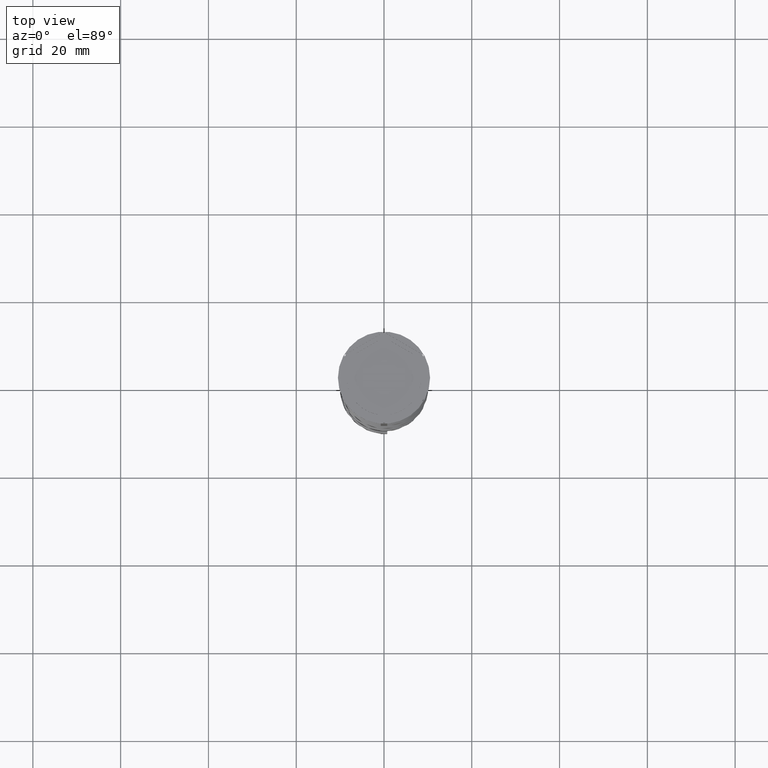
[diagram: clean part render]
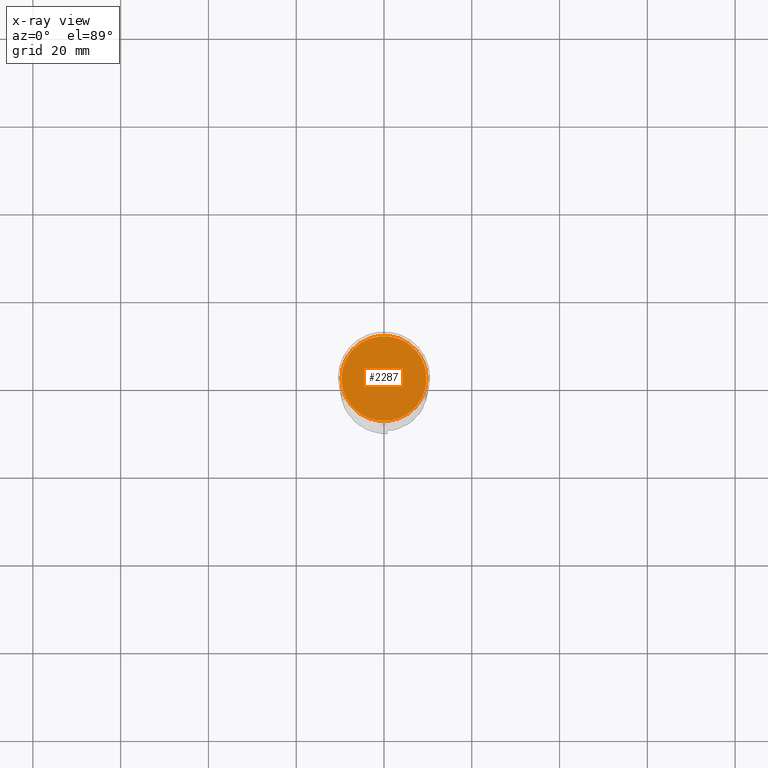
[diagram: x-ray — body ghosted, one internal face saturated and labeled with its STEP entity id]
A machine part, top view, then the same camera in x-ray: the body is ghosted and one INTERNAL B-rep face — a face not visible from any outside direction — is saturated and labeled: STEP entity #2287.
In plain terms, the highlighted planar face has unit normal (0, 0, -1).
Its self-contained STEP definition (entity closure, byte-faithful):
#514 = CARTESIAN_POINT ( 'NONE',  ( 0.000000000000000000, 0.000000000000000000, -12.00000000000000000 ) ) ;
#602 = DIRECTION ( 'NONE',  ( -1.000000000000000000, 0.000000000000000000, 0.000000000000000000 ) ) ;
#712 = AXIS2_PLACEMENT_3D ( 'NONE', #3415, #1633, #1253 ) ;
#938 = VERTEX_POINT ( 'NONE', #972 ) ;
#972 = CARTESIAN_POINT ( 'NONE',  ( 9.700000000000002842, 1.206277097160143024E-15, -12.00000000000000000 ) ) ;
#1253 = DIRECTION ( 'NONE',  ( -1.000000000000000000, 0.000000000000000000, -0.000000000000000000 ) ) ;
#1409 = CARTESIAN_POINT ( 'NONE',  ( -9.700000000000002842, 0.000000000000000000, -12.00000000000000000 ) ) ;
#1633 = DIRECTION ( 'NONE',  ( 0.000000000000000000, 0.000000000000000000, -1.000000000000000000 ) ) ;
#1814 = VERTEX_POINT ( 'NONE', #1409 ) ;
#1875 = PLANE ( 'NONE',  #712 ) ;
#1971 = EDGE_CURVE ( 'NONE', #938, #1814, #2681, .T. ) ;
#2225 = EDGE_LOOP ( 'NONE', ( #3075, #2268 ) ) ;
#2268 = ORIENTED_EDGE ( 'NONE', *, *, #1971, .T. ) ;
#2287 = ADVANCED_FACE ( 'NONE', ( #2487 ), #1875, .F. ) ;
#2363 = DIRECTION ( 'NONE',  ( -0.000000000000000000, -0.000000000000000000, 1.000000000000000000 ) ) ;
#2487 = FACE_OUTER_BOUND ( 'NONE', #2225, .T. ) ;
#2545 = AXIS2_PLACEMENT_3D ( 'NONE', #2640, #3841, #602 ) ;
#2640 = CARTESIAN_POINT ( 'NONE',  ( 0.000000000000000000, 0.000000000000000000, -12.00000000000000000 ) ) ;
#2681 = CIRCLE ( 'NONE', #2545, 9.700000000000002842 ) ;
#3075 = ORIENTED_EDGE ( 'NONE', *, *, #3432, .T. ) ;
#3094 = AXIS2_PLACEMENT_3D ( 'NONE', #514, #2363, #3237 ) ;
#3237 = DIRECTION ( 'NONE',  ( -1.000000000000000000, 0.000000000000000000, 0.000000000000000000 ) ) ;
#3415 = CARTESIAN_POINT ( 'NONE',  ( 0.000000000000000000, 0.000000000000000000, -12.00000000000000000 ) ) ;
#3432 = EDGE_CURVE ( 'NONE', #1814, #938, #3465, .T. ) ;
#3465 = CIRCLE ( 'NONE', #3094, 9.700000000000002842 ) ;
#3841 = DIRECTION ( 'NONE',  ( -0.000000000000000000, -0.000000000000000000, 1.000000000000000000 ) ) ;